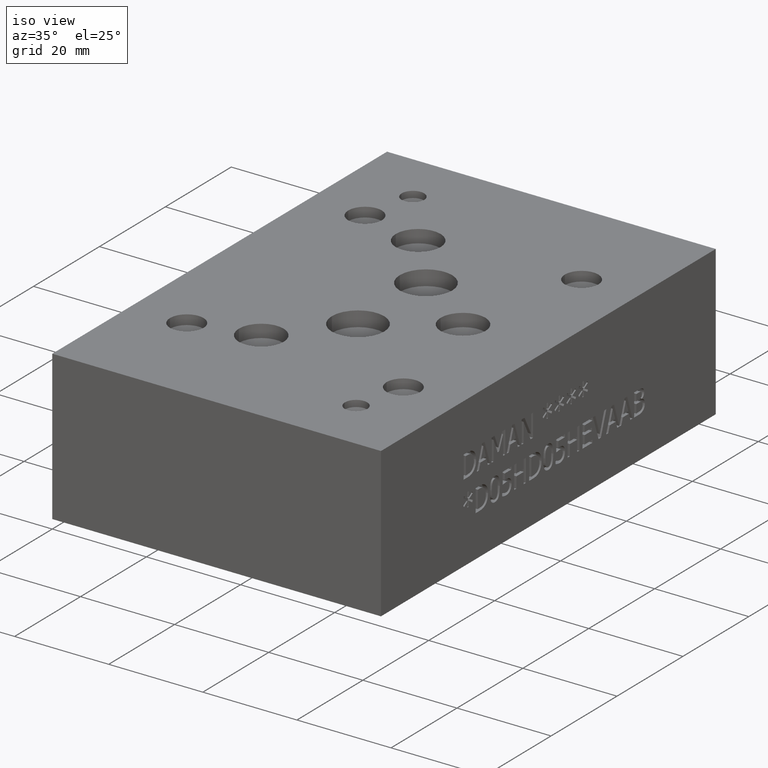
[diagram: clean part render]
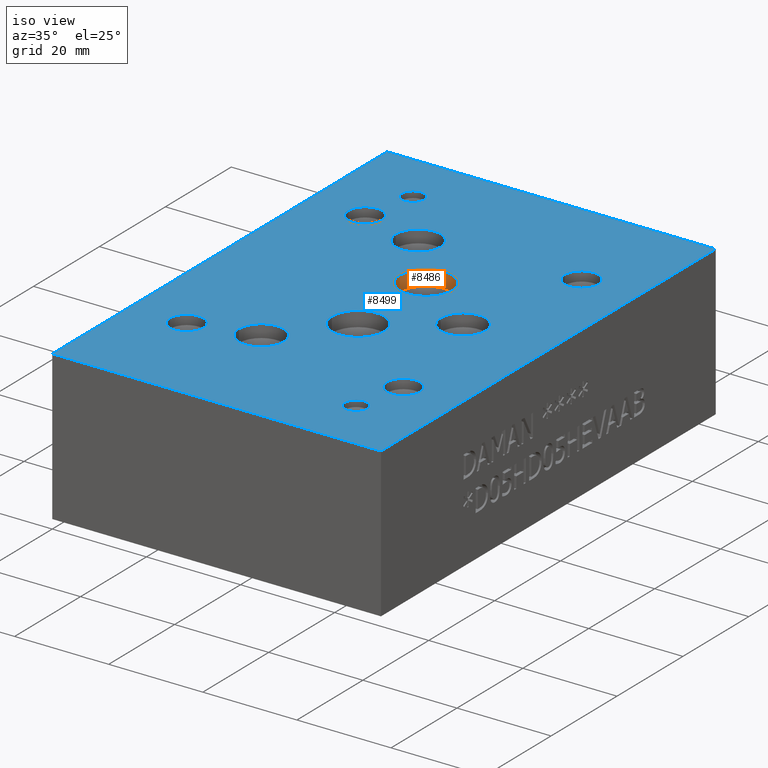
[diagram: same view with the hole feature highlighted: cylindrical wall and planar end face, labeled with their STEP entity ids]
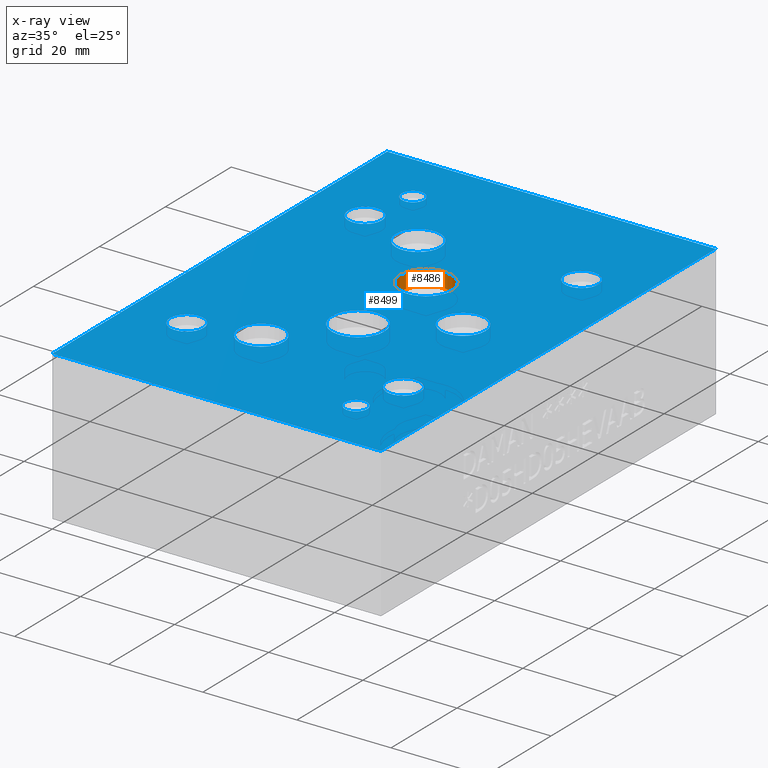
[diagram: x-ray of the same camera — body ghosted, the hole faces saturated]
A machine part, iso view. The highlighted faces form one hole feature of diameter 11.1252 mm: the cylindrical wall (entity #8486, orange) and its adjacent planar end face (entity #8499, blue) — they share a circular edge in the B-rep.
The next image is the same camera in x-ray (body ghosted, the hole faces saturated) — the bore reads through the body.
Wall:
#38=CYLINDRICAL_SURFACE('',#8929,5.5626);
#132=CIRCLE('',#8927,5.5626);
#133=CIRCLE('',#8928,5.5626);
#134=CIRCLE('',#8930,5.5626);
#135=CIRCLE('',#8931,5.5626);
#911=FACE_OUTER_BOUND('',#1377,.T.);
#1377=EDGE_LOOP('',(#7323,#7324,#7325,#7326,#7327,#7328));
#2271=LINE('',#14188,#3145);
#3145=VECTOR('',#10655,5.5626);
#3930=VERTEX_POINT('',#14177);
#3931=VERTEX_POINT('',#14178);
#3933=VERTEX_POINT('',#14184);
#3934=VERTEX_POINT('',#14185);
#5080=EDGE_CURVE('',#3930,#3931,#132,.T.);
#5082=EDGE_CURVE('',#3931,#3930,#133,.T.);
#5083=EDGE_CURVE('',#3933,#3934,#134,.T.);
#5084=EDGE_CURVE('',#3934,#3933,#135,.T.);
#5085=EDGE_CURVE('',#3934,#3931,#2271,.T.);
#7323=ORIENTED_EDGE('',*,*,#5083,.F.);
#7324=ORIENTED_EDGE('',*,*,#5084,.F.);
#7325=ORIENTED_EDGE('',*,*,#5085,.T.);
#7326=ORIENTED_EDGE('',*,*,#5080,.F.);
#7327=ORIENTED_EDGE('',*,*,#5082,.F.);
#7328=ORIENTED_EDGE('',*,*,#5085,.F.);
#8486=ADVANCED_FACE('',(#911),#38,.F.);
#8927=AXIS2_PLACEMENT_3D('',#14179,#10644,#10645);
#8928=AXIS2_PLACEMENT_3D('',#14182,#10647,#10648);
#8929=AXIS2_PLACEMENT_3D('',#14183,#10649,#10650);
#8930=AXIS2_PLACEMENT_3D('',#14186,#10651,#10652);
#8931=AXIS2_PLACEMENT_3D('',#14187,#10653,#10654);
#10644=DIRECTION('center_axis',(0.,0.,1.));
#10645=DIRECTION('ref_axis',(1.,0.,0.));
#10647=DIRECTION('center_axis',(0.,0.,1.));
#10648=DIRECTION('ref_axis',(1.,0.,0.));
#10649=DIRECTION('center_axis',(0.,0.,1.));
#10650=DIRECTION('ref_axis',(1.,0.,0.));
#10651=DIRECTION('center_axis',(0.,0.,-1.));
#10652=DIRECTION('ref_axis',(1.,0.,0.));
#10653=DIRECTION('center_axis',(0.,0.,-1.));
#10654=DIRECTION('ref_axis',(1.,0.,0.));
#10655=DIRECTION('',(0.,0.,-1.));
#14177=CARTESIAN_POINT('',(42.1005,61.23178,28.53843));
#14178=CARTESIAN_POINT('',(30.9753,61.23178,28.53843));
#14179=CARTESIAN_POINT('Origin',(36.5379,61.23178,28.53843));
#14182=CARTESIAN_POINT('Origin',(36.5379,61.23178,28.53843));
#14183=CARTESIAN_POINT('Origin',(36.5379,61.23178,30.144215));
#14184=CARTESIAN_POINT('',(42.1005,61.23178,31.75));
#14185=CARTESIAN_POINT('',(30.9753,61.23178,31.75));
#14186=CARTESIAN_POINT('Origin',(36.5379,61.23178,31.75));
#14187=CARTESIAN_POINT('Origin',(36.5379,61.23178,31.75));
#14188=CARTESIAN_POINT('',(30.9753,61.23178,30.144215));
End face:
#110=CIRCLE('',#8894,3.5687);
#111=CIRCLE('',#8895,3.5687);
#114=CIRCLE('',#8900,3.5687);
#115=CIRCLE('',#8901,3.5687);
#118=CIRCLE('',#8906,3.5687);
#119=CIRCLE('',#8907,3.5687);
#122=CIRCLE('',#8912,3.5687);
#123=CIRCLE('',#8913,3.5687);
#126=CIRCLE('',#8918,2.3876);
#127=CIRCLE('',#8919,2.3876);
#130=CIRCLE('',#8924,2.3876);
#131=CIRCLE('',#8925,2.3876);
#134=CIRCLE('',#8930,5.5626);
#135=CIRCLE('',#8931,5.5626);
#138=CIRCLE('',#8936,5.5626);
#139=CIRCLE('',#8937,5.5626);
#142=CIRCLE('',#8942,4.7625);
#143=CIRCLE('',#8943,4.7625);
#146=CIRCLE('',#8948,4.7625);
#147=CIRCLE('',#8949,4.7625);
#150=CIRCLE('',#8954,4.7625);
#151=CIRCLE('',#8955,4.7625);
#214=FACE_BOUND('',#1391,.T.);
#215=FACE_BOUND('',#1392,.T.);
#216=FACE_BOUND('',#1393,.T.);
#217=FACE_BOUND('',#1394,.T.);
#218=FACE_BOUND('',#1395,.T.);
#219=FACE_BOUND('',#1396,.T.);
#220=FACE_BOUND('',#1397,.T.);
#221=FACE_BOUND('',#1398,.T.);
#222=FACE_BOUND('',#1399,.T.);
#223=FACE_BOUND('',#1400,.T.);
#224=FACE_BOUND('',#1401,.T.);
#924=FACE_OUTER_BOUND('',#1390,.T.);
#1390=EDGE_LOOP('',(#7384,#7385,#7386,#7387));
#1391=EDGE_LOOP('',(#7388,#7389));
#1392=EDGE_LOOP('',(#7390,#7391));
#1393=EDGE_LOOP('',(#7392,#7393));
#1394=EDGE_LOOP('',(#7394,#7395));
#1395=EDGE_LOOP('',(#7396,#7397));
#1396=EDGE_LOOP('',(#7398,#7399));
#1397=EDGE_LOOP('',(#7400,#7401));
#1398=EDGE_LOOP('',(#7402,#7403));
#1399=EDGE_LOOP('',(#7404,#7405));
#1400=EDGE_LOOP('',(#7406,#7407));
#1401=EDGE_LOOP('',(#7408,#7409));
#1850=LINE('',#12981,#2724);
#2282=LINE('',#14248,#3156);
#2285=LINE('',#14252,#3159);
#2287=LINE('',#14256,#3161);
#2724=VECTOR('',#9664,10.);
#3156=VECTOR('',#10716,10.);
#3159=VECTOR('',#10721,10.);
#3161=VECTOR('',#10727,10.);
#3560=VERTEX_POINT('',#12978);
#3561=VERTEX_POINT('',#12980);
#3903=VERTEX_POINT('',#14106);
#3904=VERTEX_POINT('',#14107);
#3908=VERTEX_POINT('',#14119);
#3909=VERTEX_POINT('',#14120);
#3913=VERTEX_POINT('',#14132);
#3914=VERTEX_POINT('',#14133);
#3918=VERTEX_POINT('',#14145);
#3919=VERTEX_POINT('',#14146);
#3923=VERTEX_POINT('',#14158);
#3924=VERTEX_POINT('',#14159);
#3928=VERTEX_POINT('',#14171);
#3929=VERTEX_POINT('',#14172);
#3933=VERTEX_POINT('',#14184);
#3934=VERTEX_POINT('',#14185);
#3938=VERTEX_POINT('',#14197);
#3939=VERTEX_POINT('',#14198);
#3943=VERTEX_POINT('',#14210);
#3944=VERTEX_POINT('',#14211);
#3948=VERTEX_POINT('',#14223);
#3949=VERTEX_POINT('',#14224);
#3953=VERTEX_POINT('',#14236);
#3954=VERTEX_POINT('',#14237);
#3957=VERTEX_POINT('',#14245);
#3958=VERTEX_POINT('',#14247);
#4555=EDGE_CURVE('',#3561,#3560,#1850,.T.);
#5047=EDGE_CURVE('',#3903,#3904,#110,.T.);
#5048=EDGE_CURVE('',#3904,#3903,#111,.T.);
#5053=EDGE_CURVE('',#3908,#3909,#114,.T.);
#5054=EDGE_CURVE('',#3909,#3908,#115,.T.);
#5059=EDGE_CURVE('',#3913,#3914,#118,.T.);
#5060=EDGE_CURVE('',#3914,#3913,#119,.T.);
#5065=EDGE_CURVE('',#3918,#3919,#122,.T.);
#5066=EDGE_CURVE('',#3919,#3918,#123,.T.);
#5071=EDGE_CURVE('',#3923,#3924,#126,.T.);
#5072=EDGE_CURVE('',#3924,#3923,#127,.T.);
#5077=EDGE_CURVE('',#3928,#3929,#130,.T.);
#5078=EDGE_CURVE('',#3929,#3928,#131,.T.);
#5083=EDGE_CURVE('',#3933,#3934,#134,.T.);
#5084=EDGE_CURVE('',#3934,#3933,#135,.T.);
#5089=EDGE_CURVE('',#3938,#3939,#138,.T.);
#5090=EDGE_CURVE('',#3939,#3938,#139,.T.);
#5095=EDGE_CURVE('',#3943,#3944,#142,.T.);
#5096=EDGE_CURVE('',#3944,#3943,#143,.T.);
#5101=EDGE_CURVE('',#3948,#3949,#146,.T.);
#5102=EDGE_CURVE('',#3949,#3948,#147,.T.);
#5107=EDGE_CURVE('',#3953,#3954,#150,.T.);
#5108=EDGE_CURVE('',#3954,#3953,#151,.T.);
#5112=EDGE_CURVE('',#3958,#3957,#2282,.T.);
#5115=EDGE_CURVE('',#3560,#3958,#2285,.T.);
#5117=EDGE_CURVE('',#3957,#3561,#2287,.T.);
#7384=ORIENTED_EDGE('',*,*,#5117,.T.);
#7385=ORIENTED_EDGE('',*,*,#4555,.T.);
#7386=ORIENTED_EDGE('',*,*,#5115,.T.);
#7387=ORIENTED_EDGE('',*,*,#5112,.T.);
#7388=ORIENTED_EDGE('',*,*,#5047,.T.);
#7389=ORIENTED_EDGE('',*,*,#5048,.T.);
#7390=ORIENTED_EDGE('',*,*,#5053,.T.);
#7391=ORIENTED_EDGE('',*,*,#5054,.T.);
#7392=ORIENTED_EDGE('',*,*,#5059,.T.);
#7393=ORIENTED_EDGE('',*,*,#5060,.T.);
#7394=ORIENTED_EDGE('',*,*,#5065,.T.);
#7395=ORIENTED_EDGE('',*,*,#5066,.T.);
#7396=ORIENTED_EDGE('',*,*,#5071,.T.);
#7397=ORIENTED_EDGE('',*,*,#5072,.T.);
#7398=ORIENTED_EDGE('',*,*,#5077,.T.);
#7399=ORIENTED_EDGE('',*,*,#5078,.T.);
#7400=ORIENTED_EDGE('',*,*,#5083,.T.);
#7401=ORIENTED_EDGE('',*,*,#5084,.T.);
#7402=ORIENTED_EDGE('',*,*,#5089,.T.);
#7403=ORIENTED_EDGE('',*,*,#5090,.T.);
#7404=ORIENTED_EDGE('',*,*,#5095,.T.);
#7405=ORIENTED_EDGE('',*,*,#5096,.T.);
#7406=ORIENTED_EDGE('',*,*,#5101,.T.);
#7407=ORIENTED_EDGE('',*,*,#5102,.T.);
#7408=ORIENTED_EDGE('',*,*,#5107,.T.);
#7409=ORIENTED_EDGE('',*,*,#5108,.T.);
#7721=PLANE('',#8960);
#8499=ADVANCED_FACE('',(#924,#214,#215,#216,#217,#218,#219,#220,#221,#222,
#223,#224),#7721,.T.);
#8894=AXIS2_PLACEMENT_3D('',#14108,#10567,#10568);
#8895=AXIS2_PLACEMENT_3D('',#14109,#10569,#10570);
#8900=AXIS2_PLACEMENT_3D('',#14121,#10581,#10582);
#8901=AXIS2_PLACEMENT_3D('',#14122,#10583,#10584);
#8906=AXIS2_PLACEMENT_3D('',#14134,#10595,#10596);
#8907=AXIS2_PLACEMENT_3D('',#14135,#10597,#10598);
#8912=AXIS2_PLACEMENT_3D('',#14147,#10609,#10610);
#8913=AXIS2_PLACEMENT_3D('',#14148,#10611,#10612);
#8918=AXIS2_PLACEMENT_3D('',#14160,#10623,#10624);
#8919=AXIS2_PLACEMENT_3D('',#14161,#10625,#10626);
#8924=AXIS2_PLACEMENT_3D('',#14173,#10637,#10638);
#8925=AXIS2_PLACEMENT_3D('',#14174,#10639,#10640);
#8930=AXIS2_PLACEMENT_3D('',#14186,#10651,#10652);
#8931=AXIS2_PLACEMENT_3D('',#14187,#10653,#10654);
#8936=AXIS2_PLACEMENT_3D('',#14199,#10665,#10666);
#8937=AXIS2_PLACEMENT_3D('',#14200,#10667,#10668);
#8942=AXIS2_PLACEMENT_3D('',#14212,#10679,#10680);
#8943=AXIS2_PLACEMENT_3D('',#14213,#10681,#10682);
#8948=AXIS2_PLACEMENT_3D('',#14225,#10693,#10694);
#8949=AXIS2_PLACEMENT_3D('',#14226,#10695,#10696);
#8954=AXIS2_PLACEMENT_3D('',#14238,#10707,#10708);
#8955=AXIS2_PLACEMENT_3D('',#14239,#10709,#10710);
#8960=AXIS2_PLACEMENT_3D('',#14257,#10728,#10729);
#9664=DIRECTION('',(0.,1.,0.));
#10567=DIRECTION('center_axis',(0.,0.,-1.));
#10568=DIRECTION('ref_axis',(1.,0.,0.));
#10569=DIRECTION('center_axis',(0.,0.,-1.));
#10570=DIRECTION('ref_axis',(1.,0.,0.));
#10581=DIRECTION('center_axis',(0.,0.,-1.));
#10582=DIRECTION('ref_axis',(1.,0.,0.));
#10583=DIRECTION('center_axis',(0.,0.,-1.));
#10584=DIRECTION('ref_axis',(1.,0.,0.));
#10595=DIRECTION('center_axis',(0.,0.,-1.));
#10596=DIRECTION('ref_axis',(1.,0.,0.));
#10597=DIRECTION('center_axis',(0.,0.,-1.));
#10598=DIRECTION('ref_axis',(1.,0.,0.));
#10609=DIRECTION('center_axis',(0.,0.,-1.));
#10610=DIRECTION('ref_axis',(1.,0.,0.));
#10611=DIRECTION('center_axis',(0.,0.,-1.));
#10612=DIRECTION('ref_axis',(1.,0.,0.));
#10623=DIRECTION('center_axis',(0.,0.,-1.));
#10624=DIRECTION('ref_axis',(1.,0.,0.));
#10625=DIRECTION('center_axis',(0.,0.,-1.));
#10626=DIRECTION('ref_axis',(1.,0.,0.));
#10637=DIRECTION('center_axis',(0.,0.,-1.));
#10638=DIRECTION('ref_axis',(1.,0.,0.));
#10639=DIRECTION('center_axis',(0.,0.,-1.));
#10640=DIRECTION('ref_axis',(1.,0.,0.));
#10651=DIRECTION('center_axis',(0.,0.,-1.));
#10652=DIRECTION('ref_axis',(1.,0.,0.));
#10653=DIRECTION('center_axis',(0.,0.,-1.));
#10654=DIRECTION('ref_axis',(1.,0.,0.));
#10665=DIRECTION('center_axis',(0.,0.,-1.));
#10666=DIRECTION('ref_axis',(1.,0.,0.));
#10667=DIRECTION('center_axis',(0.,0.,-1.));
#10668=DIRECTION('ref_axis',(1.,0.,0.));
#10679=DIRECTION('center_axis',(0.,0.,-1.));
#10680=DIRECTION('ref_axis',(1.,0.,0.));
#10681=DIRECTION('center_axis',(0.,0.,-1.));
#10682=DIRECTION('ref_axis',(1.,0.,0.));
#10693=DIRECTION('center_axis',(0.,0.,-1.));
#10694=DIRECTION('ref_axis',(1.,0.,0.));
#10695=DIRECTION('center_axis',(0.,0.,-1.));
#10696=DIRECTION('ref_axis',(1.,0.,0.));
#10707=DIRECTION('center_axis',(0.,0.,-1.));
#10708=DIRECTION('ref_axis',(1.,0.,0.));
#10709=DIRECTION('center_axis',(0.,0.,-1.));
#10710=DIRECTION('ref_axis',(1.,0.,0.));
#10716=DIRECTION('',(0.,-1.,0.));
#10721=DIRECTION('',(-1.,0.,0.));
#10727=DIRECTION('',(1.,0.,0.));
#10728=DIRECTION('center_axis',(0.,0.,1.));
#10729=DIRECTION('ref_axis',(1.,0.,0.));
#12978=CARTESIAN_POINT('',(69.85,101.6,31.75));
#12980=CARTESIAN_POINT('',(69.85,0.,31.75));
#12981=CARTESIAN_POINT('',(69.85,0.,31.75));
#14106=CARTESIAN_POINT('',(15.4813,77.9018,31.75));
#14107=CARTESIAN_POINT('',(8.3439,77.9018,31.75));
#14108=CARTESIAN_POINT('Origin',(11.9126,77.9018,31.75));
#14109=CARTESIAN_POINT('Origin',(11.9126,77.9018,31.75));
#14119=CARTESIAN_POINT('',(15.4813,23.8125,31.75));
#14120=CARTESIAN_POINT('',(8.3439,23.8125,31.75));
#14121=CARTESIAN_POINT('Origin',(11.9126,23.8125,31.75));
#14122=CARTESIAN_POINT('Origin',(11.9126,23.8125,31.75));
#14132=CARTESIAN_POINT('',(61.51245,23.8125,31.75));
#14133=CARTESIAN_POINT('',(54.37505,23.8125,31.75));
#14134=CARTESIAN_POINT('Origin',(57.94375,23.8125,31.75));
#14135=CARTESIAN_POINT('Origin',(57.94375,23.8125,31.75));
#14145=CARTESIAN_POINT('',(61.51245,77.9018,31.75));
#14146=CARTESIAN_POINT('',(54.37505,77.9018,31.75));
#14147=CARTESIAN_POINT('Origin',(57.94375,77.9018,31.75));
#14148=CARTESIAN_POINT('Origin',(57.94375,77.9018,31.75));
#14158=CARTESIAN_POINT('',(57.9755,12.8143,31.75));
#14159=CARTESIAN_POINT('',(53.2003,12.8143,31.75));
#14160=CARTESIAN_POINT('Origin',(55.5879,12.8143,31.75));
#14161=CARTESIAN_POINT('Origin',(55.5879,12.8143,31.75));
#14171=CARTESIAN_POINT('',(16.7005,89.0143,31.75));
#14172=CARTESIAN_POINT('',(11.9253,89.0143,31.75));
#14173=CARTESIAN_POINT('Origin',(14.3129,89.0143,31.75));
#14174=CARTESIAN_POINT('Origin',(14.3129,89.0143,31.75));
#14184=CARTESIAN_POINT('',(42.1005,61.23178,31.75));
#14185=CARTESIAN_POINT('',(30.9753,61.23178,31.75));
#14186=CARTESIAN_POINT('Origin',(36.5379,61.23178,31.75));
#14187=CARTESIAN_POINT('Origin',(36.5379,61.23178,31.75));
#14197=CARTESIAN_POINT('',(42.10558,40.59682,31.75));
#14198=CARTESIAN_POINT('',(30.98038,40.59682,31.75));
#14199=CARTESIAN_POINT('Origin',(36.54298,40.59682,31.75));
#14200=CARTESIAN_POINT('Origin',(36.54298,40.59682,31.75));
#14210=CARTESIAN_POINT('',(30.19552,74.7268,31.75));
#14211=CARTESIAN_POINT('',(20.67052,74.7268,31.75));
#14212=CARTESIAN_POINT('Origin',(25.43302,74.7268,31.75));
#14213=CARTESIAN_POINT('Origin',(25.43302,74.7268,31.75));
#14223=CARTESIAN_POINT('',(56.4007,50.9143,31.75));
#14224=CARTESIAN_POINT('',(46.8757,50.9143,31.75));
#14225=CARTESIAN_POINT('Origin',(51.6382,50.9143,31.75));
#14226=CARTESIAN_POINT('Origin',(51.6382,50.9143,31.75));
#14236=CARTESIAN_POINT('',(30.19552,27.1018,31.75));
#14237=CARTESIAN_POINT('',(20.67052,27.1018,31.75));
#14238=CARTESIAN_POINT('Origin',(25.43302,27.1018,31.75));
#14239=CARTESIAN_POINT('Origin',(25.43302,27.1018,31.75));
#14245=CARTESIAN_POINT('',(0.,0.,31.75));
#14247=CARTESIAN_POINT('',(0.,101.6,31.75));
#14248=CARTESIAN_POINT('',(0.,101.6,31.75));
#14252=CARTESIAN_POINT('',(69.85,101.6,31.75));
#14256=CARTESIAN_POINT('',(0.,0.,31.75));
#14257=CARTESIAN_POINT('Origin',(34.925,50.8,31.75));